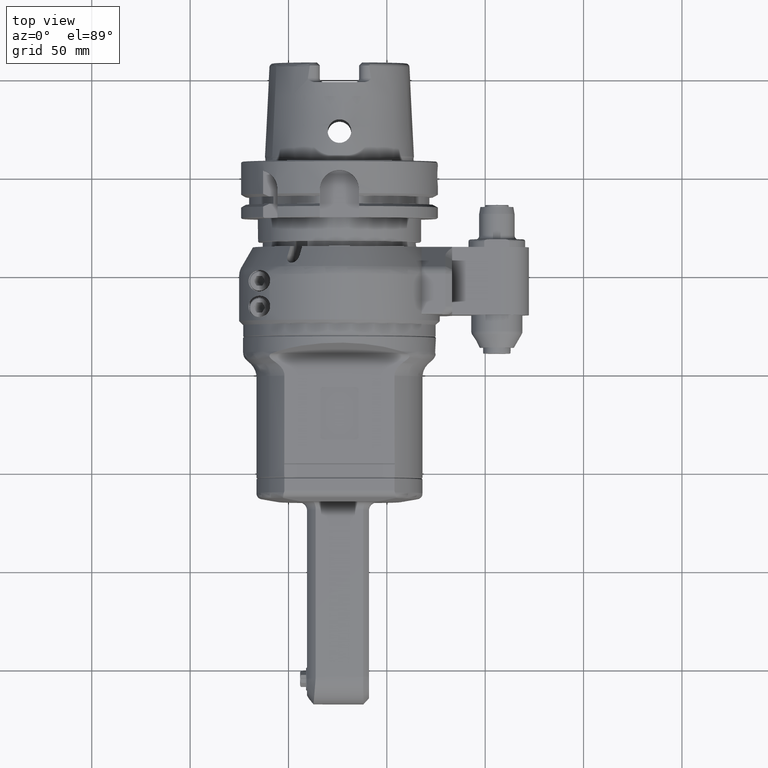
[diagram: clean part render]
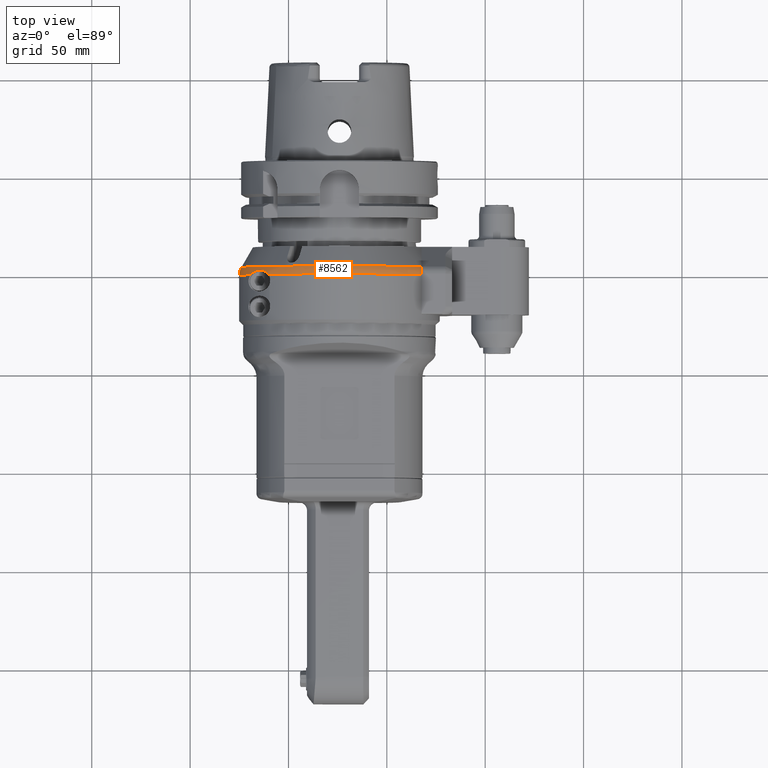
[diagram: same view with one face highlighted and labeled with its STEP entity id]
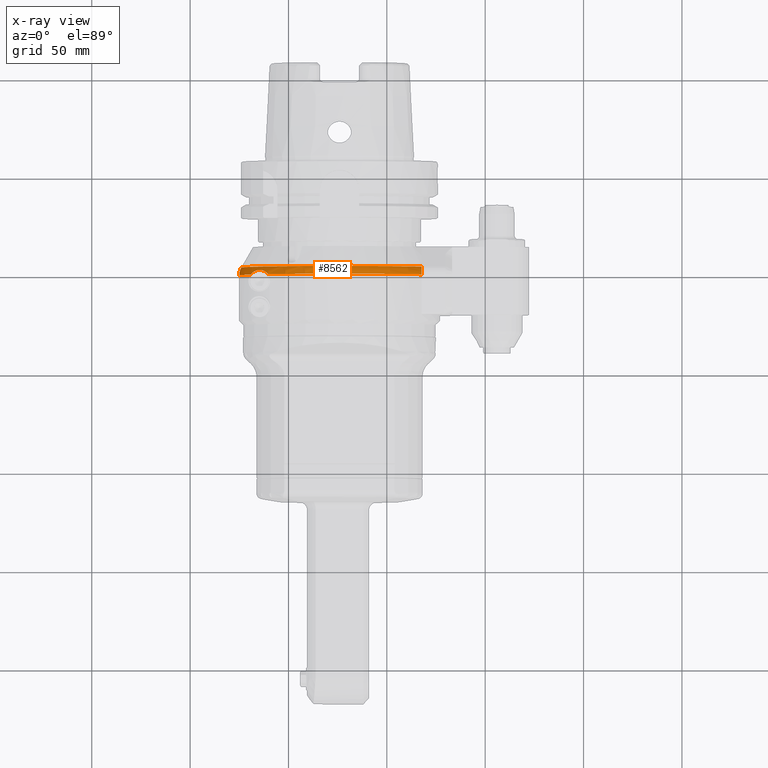
[diagram: x-ray of the same camera — body ghosted, the highlighted face saturated]
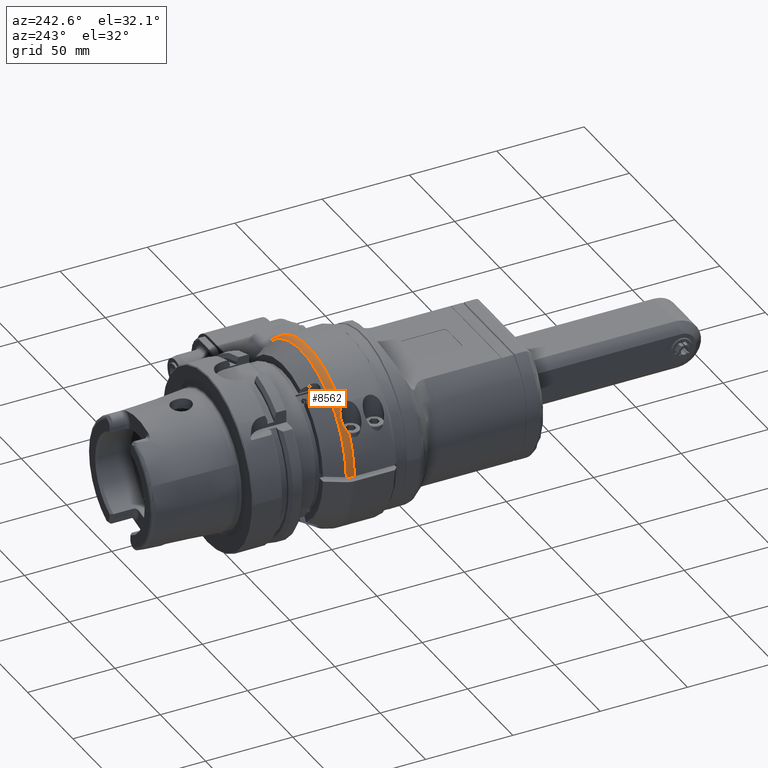
[diagram: same view with one face highlighted and labeled with its STEP entity id]
A machine part, top view. The second image highlights one B-rep face of the part: STEP entity #8562.
The next image is the same camera in x-ray: the body ghosted, the highlighted face saturated — about 0% of this face is hidden behind the body in this view.
A second angle (auxiliary view) of the same face is appended — the face is thin or edge-on in the first view.
In plain terms, the highlighted toroidal blend (fillet) surface has major radius 43 mm and minor (blend) radius 8 mm.
Its self-contained STEP definition (entity closure, byte-faithful):
#301=TOROIDAL_SURFACE('',#9294,43.,8.);
#760=FACE_OUTER_BOUND('',#1295,.T.);
#1295=EDGE_LOOP('',(#6595,#6596,#6597,#6598,#6599,#6600));
#1717=B_SPLINE_CURVE_WITH_KNOTS('',3,(#13771,#13772,#13773,#13774,#13775,
#13776,#13777,#13778,#13779,#13780),.UNSPECIFIED.,.F.,.F.,(4,2,2,2,4),(-9.68559804021147,
-9.63577634006454,-9.4843525606202,-9.37005770955715,-9.2557628584941),
 .UNSPECIFIED.);
#1732=B_SPLINE_CURVE_WITH_KNOTS('',3,(#14090,#14091,#14092,#14093,#14094,
#14095,#14096,#14097),.UNSPECIFIED.,.F.,.F.,(4,2,2,4),(4.34441023881693,
4.44441523838835,4.59248867498487,4.74056211158139),.UNSPECIFIED.);
#1735=B_SPLINE_CURVE_WITH_KNOTS('',3,(#14129,#14130,#14131,#14132,#14133,
#14134,#14135,#14136,#14137,#14138,#14139,#14140,#14141,#14142,#14143,#14144),
 .UNSPECIFIED.,.F.,.F.,(4,3,3,3,3,4),(-9.34472443709596,-9.15576581563728,
-8.53592281537647,-8.19749167718031,-7.91960616501295,-7.85473194545352),
 .UNSPECIFIED.);
#3222=CIRCLE('',#9248,51.);
#3223=CIRCLE('',#9249,51.);
#3244=CIRCLE('',#9291,49.92820323028);
#3756=VERTEX_POINT('',#13736);
#3766=VERTEX_POINT('',#13767);
#3771=VERTEX_POINT('',#13791);
#3773=VERTEX_POINT('',#13800);
#3774=VERTEX_POINT('',#13827);
#3814=VERTEX_POINT('',#14078);
#4755=EDGE_CURVE('',#3766,#3756,#1717,.T.);
#4761=EDGE_CURVE('',#3771,#3756,#3222,.T.);
#4764=EDGE_CURVE('',#3774,#3773,#3223,.T.);
#4827=EDGE_CURVE('',#3814,#3774,#1732,.T.);
#4830=EDGE_CURVE('',#3766,#3814,#3244,.T.);
#4835=EDGE_CURVE('',#3773,#3771,#1735,.T.);
#6595=ORIENTED_EDGE('',*,*,#4830,.T.);
#6596=ORIENTED_EDGE('',*,*,#4827,.T.);
#6597=ORIENTED_EDGE('',*,*,#4764,.T.);
#6598=ORIENTED_EDGE('',*,*,#4835,.T.);
#6599=ORIENTED_EDGE('',*,*,#4761,.T.);
#6600=ORIENTED_EDGE('',*,*,#4755,.F.);
#8562=ADVANCED_FACE('',(#760),#301,.T.);
#9248=AXIS2_PLACEMENT_3D('',#13792,#10672,#10673);
#9249=AXIS2_PLACEMENT_3D('',#13828,#10674,#10675);
#9291=AXIS2_PLACEMENT_3D('',#14103,#10788,#10789);
#9294=AXIS2_PLACEMENT_3D('',#14128,#10794,#10795);
#10672=DIRECTION('center_axis',(0.,1.,0.));
#10673=DIRECTION('ref_axis',(-0.711205879844998,0.,0.702983781088798));
#10674=DIRECTION('center_axis',(0.,1.,0.));
#10675=DIRECTION('ref_axis',(-0.999567380468613,0.,0.0294117647058804));
#10788=DIRECTION('center_axis',(0.,-1.,0.));
#10789=DIRECTION('ref_axis',(0.836200730225418,0.,0.548423503116412));
#10794=DIRECTION('center_axis',(0.,-1.,0.));
#10795=DIRECTION('ref_axis',(-1.,0.,0.));
#13736=CARTESIAN_POINT('',(41.75,25.23205080757,29.29057015492));
#13767=CARTESIAN_POINT('',(41.75,29.23205080757,27.38180011986));
#13771=CARTESIAN_POINT('Ctrl Pts',(41.75,29.2320508075675,27.3818001198576));
#13772=CARTESIAN_POINT('Ctrl Pts',(41.75,29.1084978721799,27.5118698927609));
#13773=CARTESIAN_POINT('Ctrl Pts',(41.75,28.9796012581369,27.63883358715));
#13774=CARTESIAN_POINT('Ctrl Pts',(41.75,28.4412749376929,28.1311886381695));
#13775=CARTESIAN_POINT('Ctrl Pts',(41.75,27.9932266664163,28.4521983127449));
#13776=CARTESIAN_POINT('Ctrl Pts',(41.75,27.2119237728328,28.8694287521605));
#13777=CARTESIAN_POINT('Ctrl Pts',(41.75,26.8258618631201,29.0288082766981));
#13778=CARTESIAN_POINT('Ctrl Pts',(41.75,26.0264941442551,29.2396724058848));
#13779=CARTESIAN_POINT('Ctrl Pts',(41.75,25.6130336444468,29.290570154915));
#13780=CARTESIAN_POINT('Ctrl Pts',(41.75,25.23205080757,29.290570154915));
#13791=CARTESIAN_POINT('',(-36.27149987209,25.23205080757,35.85217283553));
#13792=CARTESIAN_POINT('Origin',(0.,25.23205080757,0.));
#13800=CARTESIAN_POINT('',(-45.1718026933,25.23205080757,23.67505525733));
#13827=CARTESIAN_POINT('',(-50.9779364044793,25.2320508231036,1.499999980309));
#13828=CARTESIAN_POINT('Origin',(0.,25.23205080757,0.));
#14078=CARTESIAN_POINT('',(-49.9056612221311,29.2320587089715,1.50000006858959));
#14090=CARTESIAN_POINT('Ctrl Pts',(-49.9056612240274,29.2320587100669,1.5));
#14091=CARTESIAN_POINT('Ctrl Pts',(-50.0859316928166,28.9199628642827,1.5));
#14092=CARTESIAN_POINT('Ctrl Pts',(-50.2413262775005,28.6009646113261,1.5));
#14093=CARTESIAN_POINT('Ctrl Pts',(-50.5578441661684,27.8370100654999,1.5));
#14094=CARTESIAN_POINT('Ctrl Pts',(-50.7191785472564,27.3203684112507,1.5));
#14095=CARTESIAN_POINT('Ctrl Pts',(-50.9292248693063,26.2646778846743,1.5));
#14096=CARTESIAN_POINT('Ctrl Pts',(-50.9779364038993,25.7256289314938,1.5));
#14097=CARTESIAN_POINT('Ctrl Pts',(-50.9779364038993,25.23205080757,1.5));
#14103=CARTESIAN_POINT('Origin',(0.,29.23205080757,0.));
#14128=CARTESIAN_POINT('Origin',(0.,25.23205080757,0.));
#14129=CARTESIAN_POINT('Ctrl Pts',(-45.1718026933004,25.2320508075727,23.6750552573282));
#14130=CARTESIAN_POINT('Ctrl Pts',(-44.9002459459359,25.6059523067419,24.1931832058651));
#14131=CARTESIAN_POINT('Ctrl Pts',(-44.5838219388064,25.9420066961403,24.7188029255041));
#14132=CARTESIAN_POINT('Ctrl Pts',(-44.2347948006085,26.2317635357588,25.2564932996333));
#14133=CARTESIAN_POINT('Ctrl Pts',(-43.0898773216232,27.1822560162221,27.0202848225543));
#14134=CARTESIAN_POINT('Ctrl Pts',(-41.6682943531788,27.59137352447,28.8794189915692));
#14135=CARTESIAN_POINT('Ctrl Pts',(-40.2906640836259,27.4830876369281,30.7375607372453));
#14136=CARTESIAN_POINT('Ctrl Pts',(-39.5384849351284,27.4239640908754,31.7520967175732));
#14137=CARTESIAN_POINT('Ctrl Pts',(-38.7666121290631,27.2001167152264,32.7926546956207));
#14138=CARTESIAN_POINT('Ctrl Pts',(-38.0796938038266,26.823905127573,33.6844936512153));
#14139=CARTESIAN_POINT('Ctrl Pts',(-37.5156657665635,26.5149981213336,34.4167818391968));
#14140=CARTESIAN_POINT('Ctrl Pts',(-37.0238735560993,26.1276341386836,35.0318289883247));
#14141=CARTESIAN_POINT('Ctrl Pts',(-36.5775081079161,25.6160859153084,35.5266834858289));
#14142=CARTESIAN_POINT('Ctrl Pts',(-36.4733011276265,25.4966615829651,35.6422105569262));
#14143=CARTESIAN_POINT('Ctrl Pts',(-36.370647917166,25.3685659302861,35.7518651548587));
#14144=CARTESIAN_POINT('Ctrl Pts',(-36.2714998720946,25.2320508075659,35.8521728355289));